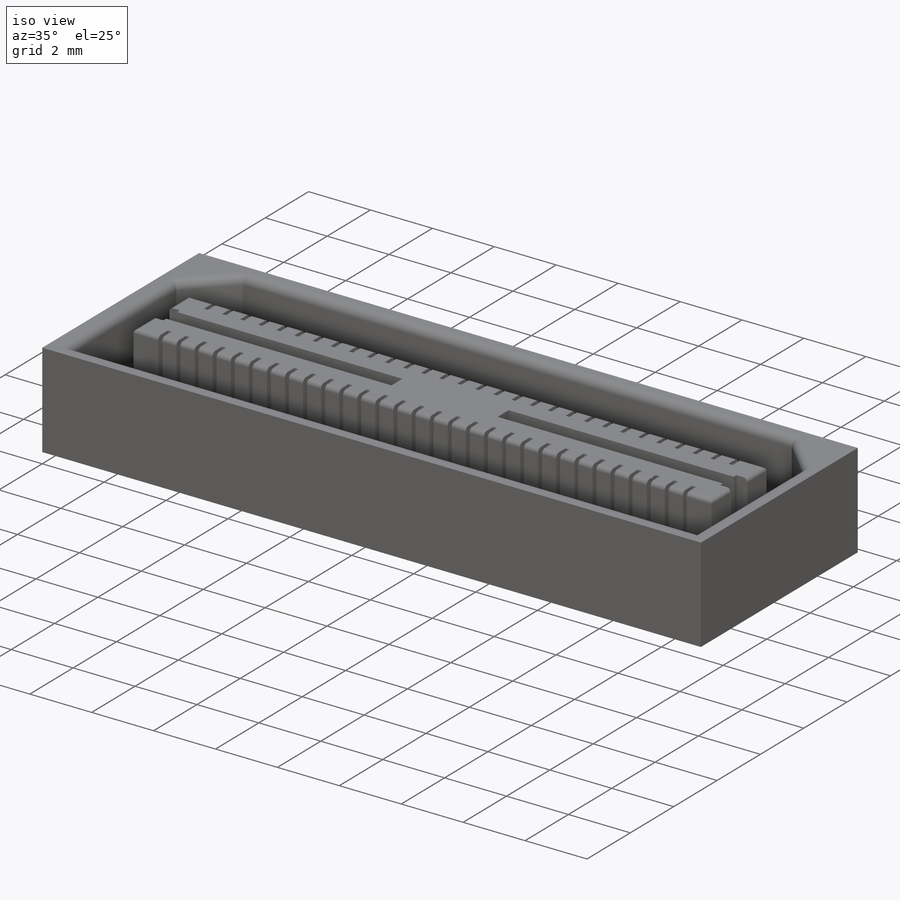
[diagram: iso view]
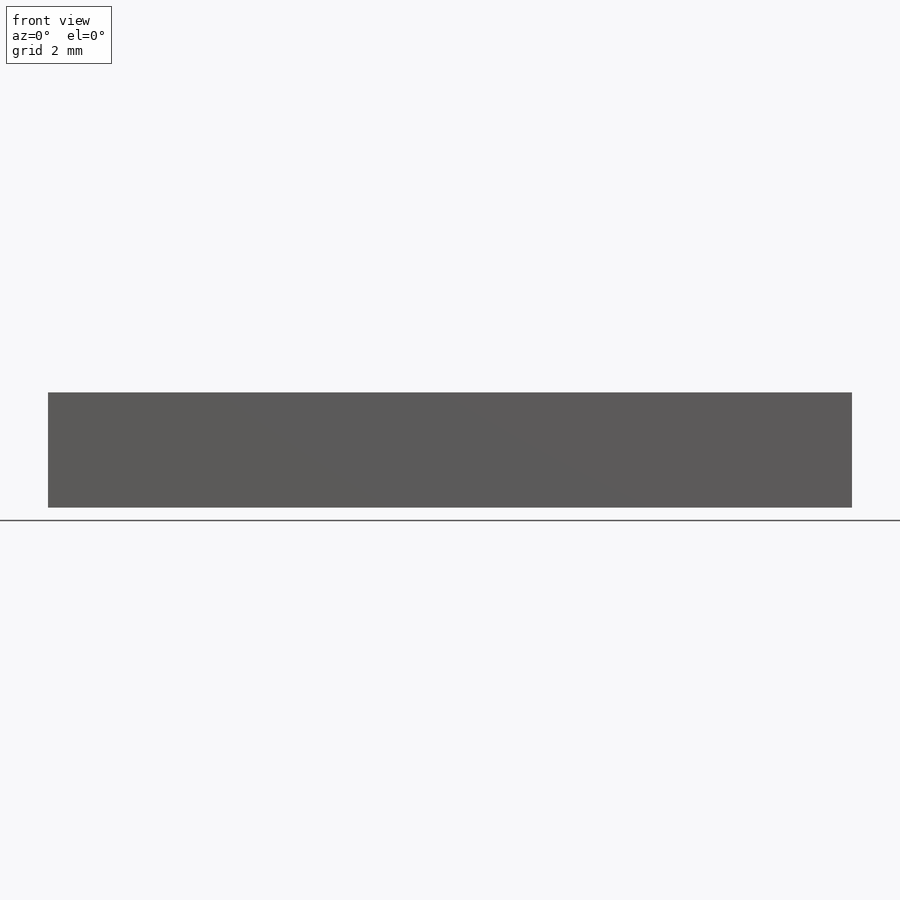
[diagram: front view]
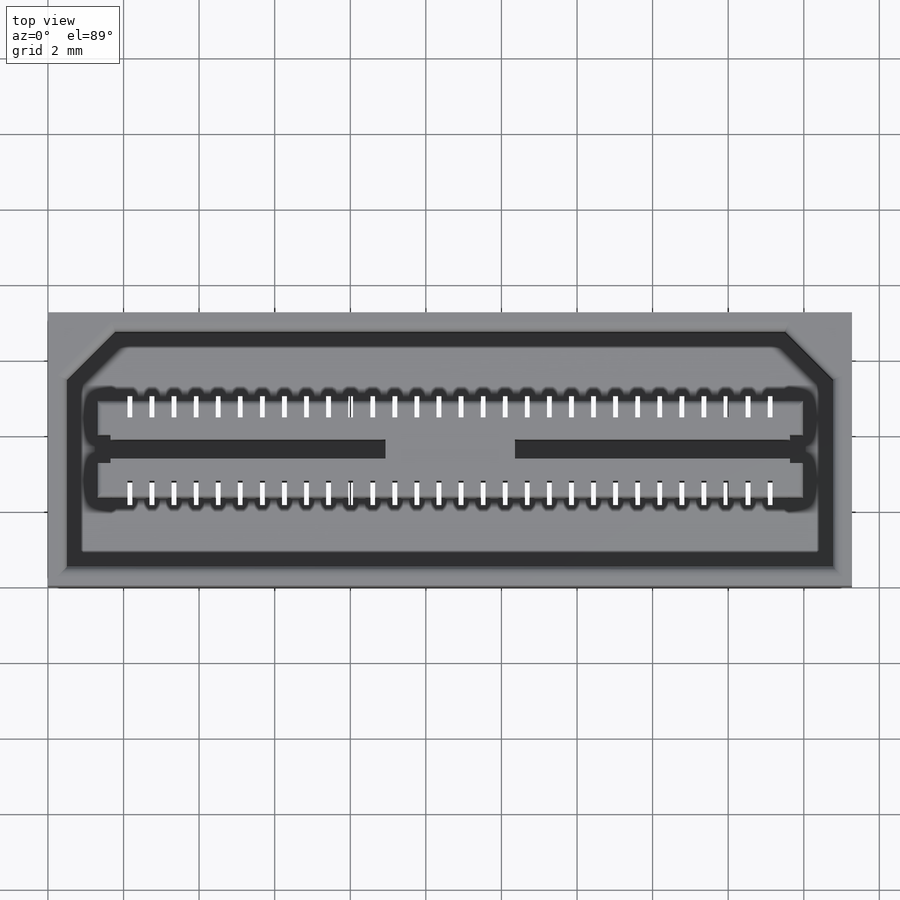
[diagram: top view]
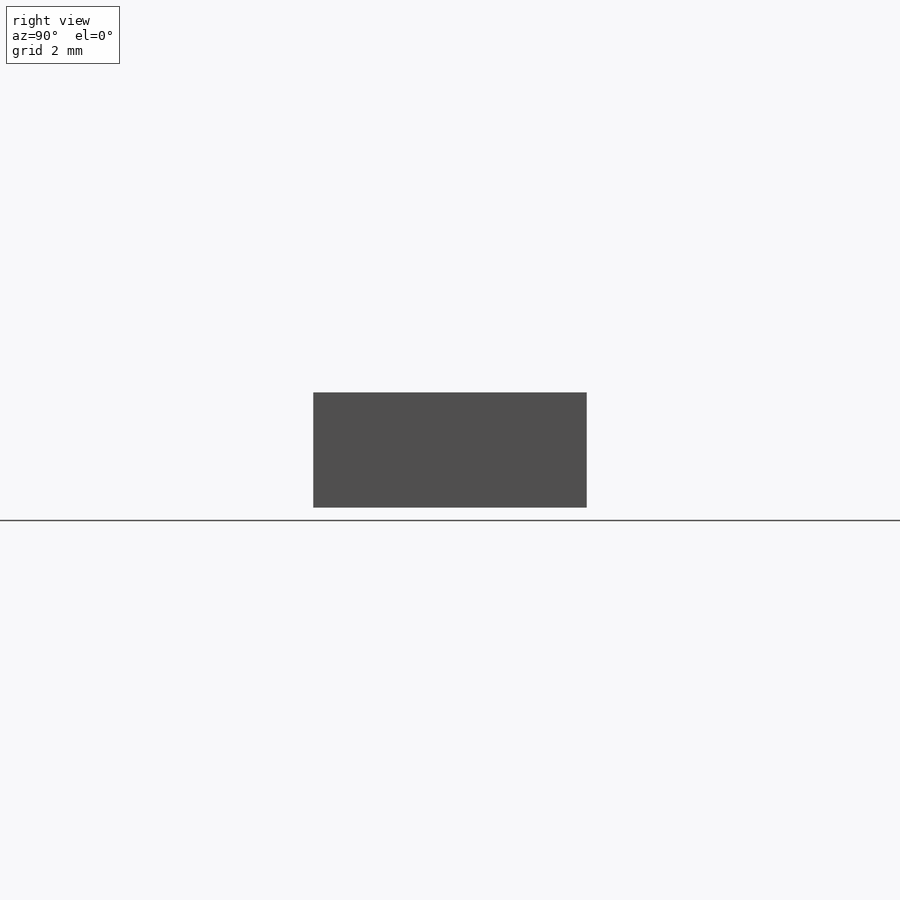
[diagram: right view]
SOLIDWORKS PART (.sldprt)
format: sldprt  version: not decoded by parser v0  size: 650,752 bytes
history: native  units: mm
features: sketch x4, cut_extrude x2, fillet x2, material x1, extrude x1 (+13 scaffold rows collapsed)
feature tree (23):
  scaffold x13  (default folders/planes/origin — collapsed)
  material  "Material <not specified>"
  sketch  "Sketch1"  dims[D1=~21.27758mm D2=7.239mm]
  extrude  "Boss-Extrude1"  Depth=3.048mm
  sketch  "Sketch2"  dims[c1.D1=~1.784098mm c2.D1=135.0deg c2.D2=~1.68079mm c3.D2=135.0deg c3.D3=6.223mm c3.D4=1.27mm c3.D5=0.508mm c3.D6=0.762mm c3.D7=7.62mm c3.D8=0.3429mm c3.D9=3.429mm c3.D10=2.54mm]
  cut_extrude  "Cut-Extrude1"  Depth=0.508mm
  fillet  "Fillet1"  Radius=0.127mm
  fillet  "Fillet2"  Radius=0.254mm
  sketch  "Sketch3"  dims[D1=0.6096mm D2=0.127mm D4=0.5842mm D5=0.5842mm D3=30.0]
  cut_extrude  "Cut-Extrude2"  [1 undecoded]
  sketch  "Sketch4"  dims[D1=~7.240016mm D2=~21.26996mm]
decode coverage: 8 of 9 modeling features carry decoded parameters
note: ~ marks probable driven/reference dimensions
note: 1 parameter value undecoded
note: suppression state not decoded; provenance and decode notes live in map.json
